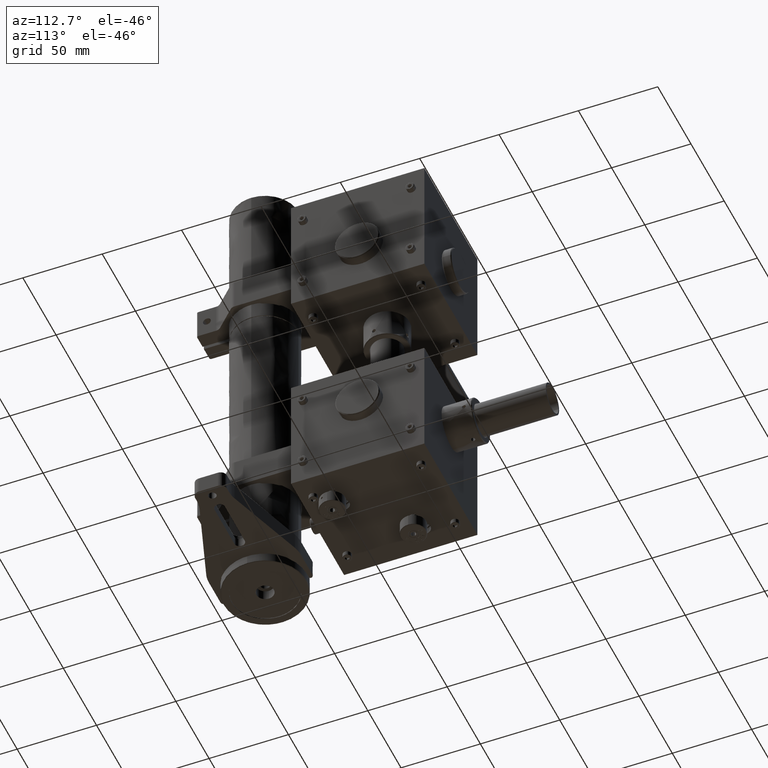
[diagram: clean part render]
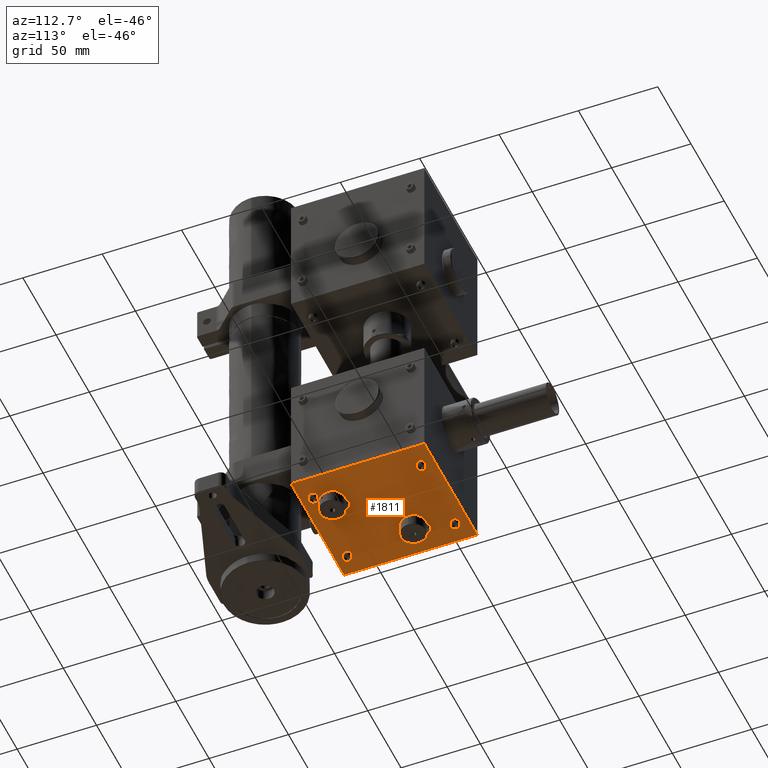
[diagram: same view with one face highlighted and labeled with its STEP entity id]
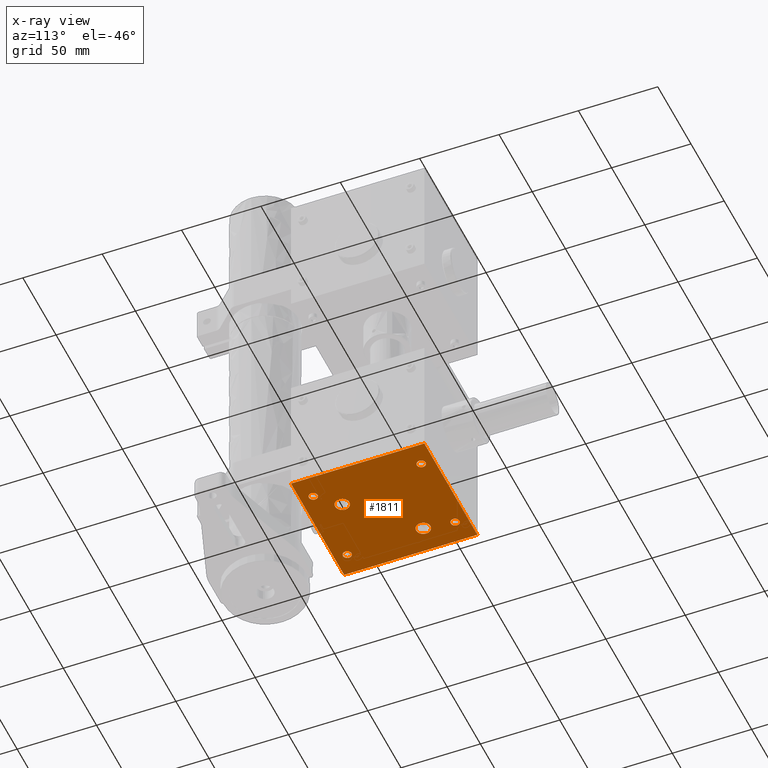
[diagram: x-ray of the same camera — body ghosted, the highlighted face saturated]
A machine part, auxiliary view. The second image highlights one B-rep face of the part: STEP entity #1811.
The next image is the same camera in x-ray: the body ghosted, the highlighted face saturated — about 0% of this face is hidden behind the body in this view.
In plain terms, the highlighted face is a freeform B-spline surface patch.
Its self-contained STEP definition (entity closure, byte-faithful):
#1811=ADVANCED_FACE('',(#4897,#4288,#4289,#4290,#4291,#4292,#4293),#106596,
 .T.);
#4288=FACE_BOUND('',#7758,.T.);
#4289=FACE_BOUND('',#7759,.T.);
#4290=FACE_BOUND('',#7760,.T.);
#4291=FACE_BOUND('',#7761,.T.);
#4292=FACE_BOUND('',#7762,.T.);
#4293=FACE_BOUND('',#7763,.T.);
#4897=FACE_OUTER_BOUND('',#7757,.T.);
#7757=EDGE_LOOP('',(#12363,#12364,#12365,#12366));
#7758=EDGE_LOOP('',(#12367,#12368));
#7759=EDGE_LOOP('',(#12369,#12370));
#7760=EDGE_LOOP('',(#12371,#12372));
#7761=EDGE_LOOP('',(#12373,#12374,#12375));
#7762=EDGE_LOOP('',(#12376,#12377));
#7763=EDGE_LOOP('',(#12378,#12379));
#12363=ORIENTED_EDGE('',*,*,#87504,.T.);
#12364=ORIENTED_EDGE('',*,*,#87505,.T.);
#12365=ORIENTED_EDGE('',*,*,#87492,.F.);
#12366=ORIENTED_EDGE('',*,*,#87506,.T.);
#12367=ORIENTED_EDGE('',*,*,#87507,.T.);
#12368=ORIENTED_EDGE('',*,*,#87508,.T.);
#12369=ORIENTED_EDGE('',*,*,#87069,.F.);
#12370=ORIENTED_EDGE('',*,*,#87067,.F.);
#12371=ORIENTED_EDGE('',*,*,#87509,.T.);
#12372=ORIENTED_EDGE('',*,*,#87510,.T.);
#12373=ORIENTED_EDGE('',*,*,#87076,.F.);
#12374=ORIENTED_EDGE('',*,*,#87074,.F.);
#12375=ORIENTED_EDGE('',*,*,#87077,.F.);
#12376=ORIENTED_EDGE('',*,*,#87511,.T.);
#12377=ORIENTED_EDGE('',*,*,#87512,.T.);
#12378=ORIENTED_EDGE('',*,*,#87513,.T.);
#12379=ORIENTED_EDGE('',*,*,#87514,.T.);
#27027=B_SPLINE_CURVE_WITH_KNOTS('',1,(#134753,#134754),.UNSPECIFIED.,.F.,
 .F.,(2,2),(-8.63937979737193,0.),.UNSPECIFIED.);
#27029=B_SPLINE_CURVE_WITH_KNOTS('',1,(#134764,#134765),.UNSPECIFIED.,.F.,
 .F.,(2,2),(-8.63937979737193,0.),.UNSPECIFIED.);
#27036=B_SPLINE_CURVE_WITH_KNOTS('',1,(#134792,#134793),.UNSPECIFIED.,.F.,
 .F.,(2,2),(-4.31968989868597,0.),.UNSPECIFIED.);
#27038=B_SPLINE_CURVE_WITH_KNOTS('',1,(#134803,#134804),.UNSPECIFIED.,.F.,
 .F.,(2,2),(-8.63937979737193,0.),.UNSPECIFIED.);
#27039=B_SPLINE_CURVE_WITH_KNOTS('',1,(#134808,#134809),.UNSPECIFIED.,.F.,
 .F.,(2,2),(-8.63937979737193,-4.31968989868597),.UNSPECIFIED.);
#27657=B_SPLINE_CURVE_WITH_KNOTS('',1,(#138176,#138177),.UNSPECIFIED.,.F.,
 .F.,(2,2),(-84.000000000002,0.),.UNSPECIFIED.);
#27658=B_SPLINE_CURVE_WITH_KNOTS('',1,(#138178,#138179),.UNSPECIFIED.,.F.,
 .F.,(2,2),(-84.000000000002,0.),.UNSPECIFIED.);
#27664=B_SPLINE_CURVE_WITH_KNOTS('',1,(#138282,#138283),.UNSPECIFIED.,.F.,
 .F.,(2,2),(-84.0000000000029,0.),.UNSPECIFIED.);
#27665=B_SPLINE_CURVE_WITH_KNOTS('',1,(#138284,#138285),.UNSPECIFIED.,.F.,
 .F.,(2,2),(-84.0000000000029,0.),.UNSPECIFIED.);
#27666=B_SPLINE_CURVE_WITH_KNOTS('',1,(#138286,#138287),.UNSPECIFIED.,.F.,
 .F.,(2,2),(-80.,0.),.UNSPECIFIED.);
#27667=B_SPLINE_CURVE_WITH_KNOTS('',1,(#138288,#138289),.UNSPECIFIED.,.F.,
 .F.,(2,2),(-80.,0.),.UNSPECIFIED.);
#27668=B_SPLINE_CURVE_WITH_KNOTS('',1,(#138290,#138291),.UNSPECIFIED.,.F.,
 .F.,(2,2),(-84.000000000002,0.),.UNSPECIFIED.);
#27669=B_SPLINE_CURVE_WITH_KNOTS('',1,(#138292,#138293),.UNSPECIFIED.,.F.,
 .F.,(2,2),(-80.,0.),.UNSPECIFIED.);
#27670=B_SPLINE_CURVE_WITH_KNOTS('',1,(#138294,#138295),.UNSPECIFIED.,.F.,
 .F.,(2,2),(-80.,0.),.UNSPECIFIED.);
#27674=B_SPLINE_CURVE_WITH_KNOTS('',1,(#138403,#138404),.UNSPECIFIED.,.F.,
 .F.,(2,2),(-84.0000000000029,0.),.UNSPECIFIED.);
#27679=B_SPLINE_CURVE_WITH_KNOTS('',1,(#138505,#138506),.UNSPECIFIED.,.F.,
 .F.,(2,2),(-80.,0.),.UNSPECIFIED.);
#27700=B_SPLINE_CURVE_WITH_KNOTS('',1,(#138630,#138631),.UNSPECIFIED.,.F.,
 .F.,(2,2),(0.,14.1371669411541),.UNSPECIFIED.);
#27705=B_SPLINE_CURVE_WITH_KNOTS('',1,(#138644,#138645),.UNSPECIFIED.,.F.,
 .F.,(2,2),(0.,14.1371669411541),.UNSPECIFIED.);
#27708=B_SPLINE_CURVE_WITH_KNOTS('',1,(#138650,#138651),.UNSPECIFIED.,.F.,
 .F.,(2,2),(0.,14.1371669411541),.UNSPECIFIED.);
#27713=B_SPLINE_CURVE_WITH_KNOTS('',1,(#138664,#138665),.UNSPECIFIED.,.F.,
 .F.,(2,2),(0.,14.1371669411541),.UNSPECIFIED.);
#28195=B_SPLINE_CURVE_WITH_KNOTS('',1,(#141897,#141898),.UNSPECIFIED.,.F.,
 .F.,(2,2),(-80.,0.),.UNSPECIFIED.);
#29817=B_SPLINE_CURVE_WITH_KNOTS('',1,(#151377,#151378),.UNSPECIFIED.,.F.,
 .F.,(2,2),(0.,8.63937979737193),.UNSPECIFIED.);
#29819=B_SPLINE_CURVE_WITH_KNOTS('',1,(#151383,#151384),.UNSPECIFIED.,.F.,
 .F.,(2,2),(0.,8.63937979737193),.UNSPECIFIED.);
#29827=B_SPLINE_CURVE_WITH_KNOTS('',1,(#151413,#151414),.UNSPECIFIED.,.F.,
 .F.,(2,2),(0.,8.63937979737193),.UNSPECIFIED.);
#29829=B_SPLINE_CURVE_WITH_KNOTS('',1,(#151419,#151420),.UNSPECIFIED.,.F.,
 .F.,(2,2),(0.,8.63937979737193),.UNSPECIFIED.);
#47385=PCURVE('',#105227,#62881);
#47387=PCURVE('',#105228,#62883);
#47394=PCURVE('',#105229,#62890);
#47396=PCURVE('',#105230,#62892);
#47397=PCURVE('',#105230,#62893);
#48067=PCURVE('',#106595,#63563);
#48086=PCURVE('',#106596,#63582);
#48087=PCURVE('',#106596,#63583);
#48088=PCURVE('',#106596,#63584);
#48089=PCURVE('',#106596,#63585);
#48090=PCURVE('',#106596,#63586);
#48091=PCURVE('',#106596,#63587);
#48092=PCURVE('',#106596,#63588);
#48093=PCURVE('',#106596,#63589);
#48094=PCURVE('',#106596,#63590);
#48095=PCURVE('',#106596,#63591);
#48096=PCURVE('',#106596,#63592);
#48097=PCURVE('',#106596,#63593);
#48098=PCURVE('',#106596,#63594);
#48099=PCURVE('',#106596,#63595);
#48100=PCURVE('',#106596,#63596);
#48101=PCURVE('',#106596,#63597);
#48102=PCURVE('',#106596,#63598);
#48105=PCURVE('',#106597,#63601);
#48124=PCURVE('',#106598,#63620);
#48147=PCURVE('',#105318,#63643);
#48152=PCURVE('',#105319,#63648);
#48155=PCURVE('',#105320,#63651);
#48160=PCURVE('',#105321,#63656);
#48677=PCURVE('',#106626,#64173);
#50466=PCURVE('',#105601,#65962);
#50468=PCURVE('',#105602,#65964);
#50476=PCURVE('',#105603,#65972);
#50478=PCURVE('',#105604,#65974);
#62881=DEFINITIONAL_REPRESENTATION('',(#27027),#277684);
#62883=DEFINITIONAL_REPRESENTATION('',(#27029),#277684);
#62890=DEFINITIONAL_REPRESENTATION('',(#27036),#277684);
#62892=DEFINITIONAL_REPRESENTATION('',(#27038),#277684);
#62893=DEFINITIONAL_REPRESENTATION('',(#27039),#277684);
#63563=DEFINITIONAL_REPRESENTATION('',(#27658),#277684);
#63582=DEFINITIONAL_REPRESENTATION('',(#27665),#277684);
#63583=DEFINITIONAL_REPRESENTATION('',(#27667),#277684);
#63584=DEFINITIONAL_REPRESENTATION('',(#27668),#277684);
#63585=DEFINITIONAL_REPRESENTATION('',(#27670),#277684);
#63586=DEFINITIONAL_REPRESENTATION('',(#97007),#277684);
#63587=DEFINITIONAL_REPRESENTATION('',(#97009),#277684);
#63588=DEFINITIONAL_REPRESENTATION('',(#97010),#277684);
#63589=DEFINITIONAL_REPRESENTATION('',(#97011),#277684);
#63590=DEFINITIONAL_REPRESENTATION('',(#97013),#277684);
#63591=DEFINITIONAL_REPRESENTATION('',(#97015),#277684);
#63592=DEFINITIONAL_REPRESENTATION('',(#97016),#277684);
#63593=DEFINITIONAL_REPRESENTATION('',(#97017),#277684);
#63594=DEFINITIONAL_REPRESENTATION('',(#97018),#277684);
#63595=DEFINITIONAL_REPRESENTATION('',(#97020),#277684);
#63596=DEFINITIONAL_REPRESENTATION('',(#97022),#277684);
#63597=DEFINITIONAL_REPRESENTATION('',(#97024),#277684);
#63598=DEFINITIONAL_REPRESENTATION('',(#97026),#277684);
#63601=DEFINITIONAL_REPRESENTATION('',(#27674),#277684);
#63620=DEFINITIONAL_REPRESENTATION('',(#27679),#277684);
#63643=DEFINITIONAL_REPRESENTATION('',(#27700),#277684);
#63648=DEFINITIONAL_REPRESENTATION('',(#27705),#277684);
#63651=DEFINITIONAL_REPRESENTATION('',(#27708),#277684);
#63656=DEFINITIONAL_REPRESENTATION('',(#27713),#277684);
#64173=DEFINITIONAL_REPRESENTATION('',(#28195),#277684);
#65962=DEFINITIONAL_REPRESENTATION('',(#29817),#277684);
#65964=DEFINITIONAL_REPRESENTATION('',(#29819),#277684);
#65972=DEFINITIONAL_REPRESENTATION('',(#29827),#277684);
#65974=DEFINITIONAL_REPRESENTATION('',(#29829),#277684);
#77760=SURFACE_CURVE('',#96505,(#47385,#48093),.PCURVE_S1.);
#77762=SURFACE_CURVE('',#96507,(#47387,#48092),.PCURVE_S1.);
#77767=SURFACE_CURVE('',#96512,(#47394,#48097),.PCURVE_S1.);
#77769=SURFACE_CURVE('',#96514,(#47396,#48096),.PCURVE_S1.);
#77770=SURFACE_CURVE('',#96515,(#47397,#48098),.PCURVE_S1.);
#78185=SURFACE_CURVE('',#27657,(#48067,#48088),.PCURVE_S1.);
#78197=SURFACE_CURVE('',#27664,(#48086,#48105),.PCURVE_S1.);
#78198=SURFACE_CURVE('',#27666,(#48087,#48124),.PCURVE_S1.);
#78199=SURFACE_CURVE('',#27669,(#48089,#48677),.PCURVE_S1.);
#78200=SURFACE_CURVE('',#97006,(#48090,#50478),.PCURVE_S1.);
#78201=SURFACE_CURVE('',#97008,(#48091,#50476),.PCURVE_S1.);
#78202=SURFACE_CURVE('',#97012,(#48094,#50468),.PCURVE_S1.);
#78203=SURFACE_CURVE('',#97014,(#48095,#50466),.PCURVE_S1.);
#78204=SURFACE_CURVE('',#97019,(#48099,#48152),.PCURVE_S1.);
#78205=SURFACE_CURVE('',#97021,(#48100,#48147),.PCURVE_S1.);
#78206=SURFACE_CURVE('',#97023,(#48101,#48160),.PCURVE_S1.);
#78207=SURFACE_CURVE('',#97025,(#48102,#48155),.PCURVE_S1.);
#87067=EDGE_CURVE('',#100713,#100714,#77760,.T.);
#87069=EDGE_CURVE('',#100714,#100713,#77762,.T.);
#87074=EDGE_CURVE('',#100718,#100719,#77767,.T.);
#87076=EDGE_CURVE('',#100719,#100720,#77769,.T.);
#87077=EDGE_CURVE('',#100720,#100718,#77770,.T.);
#87492=EDGE_CURVE('',#101021,#101022,#78185,.T.);
#87504=EDGE_CURVE('',#101032,#101033,#78197,.T.);
#87505=EDGE_CURVE('',#101033,#101022,#78198,.T.);
#87506=EDGE_CURVE('',#101021,#101032,#78199,.T.);
#87507=EDGE_CURVE('',#101035,#101034,#78200,.T.);
#87508=EDGE_CURVE('',#101034,#101035,#78201,.T.);
#87509=EDGE_CURVE('',#101037,#101036,#78202,.T.);
#87510=EDGE_CURVE('',#101036,#101037,#78203,.T.);
#87511=EDGE_CURVE('',#101039,#101038,#78204,.T.);
#87512=EDGE_CURVE('',#101038,#101039,#78205,.T.);
#87513=EDGE_CURVE('',#101041,#101040,#78206,.T.);
#87514=EDGE_CURVE('',#101040,#101041,#78207,.T.);
#96505=(
BOUNDED_CURVE()
B_SPLINE_CURVE(2,(#134748,#134749,#134750,#134751,#134752),
 .UNSPECIFIED.,.F.,.F.)
B_SPLINE_CURVE_WITH_KNOTS((3,2,3),(-8.63937979737193,-4.31968989868597,
0.),.UNSPECIFIED.)
CURVE()
GEOMETRIC_REPRESENTATION_ITEM()
RATIONAL_B_SPLINE_CURVE((1.,0.707106781186548,1.,0.707106781186548,1.))
REPRESENTATION_ITEM('')
);
#96507=(
BOUNDED_CURVE()
B_SPLINE_CURVE(2,(#134759,#134760,#134761,#134762,#134763),
 .UNSPECIFIED.,.F.,.F.)
B_SPLINE_CURVE_WITH_KNOTS((3,2,3),(-8.63937979737193,-4.31968989868597,
0.),.UNSPECIFIED.)
CURVE()
GEOMETRIC_REPRESENTATION_ITEM()
RATIONAL_B_SPLINE_CURVE((1.,0.707106781186548,1.,0.707106781186548,1.))
REPRESENTATION_ITEM('')
);
#96512=(
BOUNDED_CURVE()
B_SPLINE_CURVE(2,(#134789,#134790,#134791),.UNSPECIFIED.,.F.,.F.)
B_SPLINE_CURVE_WITH_KNOTS((3,3),(-4.31968989868597,0.),.UNSPECIFIED.)
CURVE()
GEOMETRIC_REPRESENTATION_ITEM()
RATIONAL_B_SPLINE_CURVE((1.,0.707106781186553,1.))
REPRESENTATION_ITEM('')
);
#96514=(
BOUNDED_CURVE()
B_SPLINE_CURVE(2,(#134798,#134799,#134800,#134801,#134802),
 .UNSPECIFIED.,.F.,.F.)
B_SPLINE_CURVE_WITH_KNOTS((3,2,3),(-8.63937979737193,-4.31968989868597,
0.),.UNSPECIFIED.)
CURVE()
GEOMETRIC_REPRESENTATION_ITEM()
RATIONAL_B_SPLINE_CURVE((1.,0.707106781186547,1.,0.707106781186547,1.))
REPRESENTATION_ITEM('')
);
#96515=(
BOUNDED_CURVE()
B_SPLINE_CURVE(2,(#134805,#134806,#134807),.UNSPECIFIED.,.F.,.F.)
B_SPLINE_CURVE_WITH_KNOTS((3,3),(-8.63937979737193,-4.31968989868597),
 .UNSPECIFIED.)
CURVE()
GEOMETRIC_REPRESENTATION_ITEM()
RATIONAL_B_SPLINE_CURVE((1.,0.707106781186548,1.))
REPRESENTATION_ITEM('')
);
#97006=(
BOUNDED_CURVE()
B_SPLINE_CURVE(2,(#138296,#138297,#138298,#138299,#138300),
 .UNSPECIFIED.,.F.,.F.)
B_SPLINE_CURVE_WITH_KNOTS((3,2,3),(0.,4.31968989868598,8.63937979737193),
 .UNSPECIFIED.)
CURVE()
GEOMETRIC_REPRESENTATION_ITEM()
RATIONAL_B_SPLINE_CURVE((1.,0.707106781186548,1.,0.707106781186548,1.))
REPRESENTATION_ITEM('')
);
#97007=(
BOUNDED_CURVE()
B_SPLINE_CURVE(2,(#138301,#138302,#138303,#138304,#138305),
 .UNSPECIFIED.,.F.,.F.)
B_SPLINE_CURVE_WITH_KNOTS((3,2,3),(0.,4.31968989868597,8.63937979737193),
 .UNSPECIFIED.)
CURVE()
GEOMETRIC_REPRESENTATION_ITEM()
RATIONAL_B_SPLINE_CURVE((1.,0.707106781186549,1.,0.707106781186549,1.))
REPRESENTATION_ITEM('')
);
#97008=(
BOUNDED_CURVE()
B_SPLINE_CURVE(2,(#138306,#138307,#138308,#138309,#138310),
 .UNSPECIFIED.,.F.,.F.)
B_SPLINE_CURVE_WITH_KNOTS((3,2,3),(0.,4.31968989868597,8.63937979737193),
 .UNSPECIFIED.)
CURVE()
GEOMETRIC_REPRESENTATION_ITEM()
RATIONAL_B_SPLINE_CURVE((1.,0.707106781186547,1.,0.707106781186547,1.))
REPRESENTATION_ITEM('')
);
#97009=(
BOUNDED_CURVE()
B_SPLINE_CURVE(2,(#138311,#138312,#138313,#138314,#138315),
 .UNSPECIFIED.,.F.,.F.)
B_SPLINE_CURVE_WITH_KNOTS((3,2,3),(0.,4.31968989868597,8.63937979737193),
 .UNSPECIFIED.)
CURVE()
GEOMETRIC_REPRESENTATION_ITEM()
RATIONAL_B_SPLINE_CURVE((1.,0.707106781186547,1.,0.707106781186547,1.))
REPRESENTATION_ITEM('')
);
#97010=(
BOUNDED_CURVE()
B_SPLINE_CURVE(2,(#138316,#138317,#138318,#138319,#138320),
 .UNSPECIFIED.,.F.,.F.)
B_SPLINE_CURVE_WITH_KNOTS((3,2,3),(-8.63937979737193,-4.31968989868597,
0.),.UNSPECIFIED.)
CURVE()
GEOMETRIC_REPRESENTATION_ITEM()
RATIONAL_B_SPLINE_CURVE((1.,0.707106781186548,1.,0.707106781186548,1.))
REPRESENTATION_ITEM('')
);
#97011=(
BOUNDED_CURVE()
B_SPLINE_CURVE(2,(#138321,#138322,#138323,#138324,#138325),
 .UNSPECIFIED.,.F.,.F.)
B_SPLINE_CURVE_WITH_KNOTS((3,2,3),(-8.63937979737193,-4.31968989868597,
0.),.UNSPECIFIED.)
CURVE()
GEOMETRIC_REPRESENTATION_ITEM()
RATIONAL_B_SPLINE_CURVE((1.,0.707106781186548,1.,0.707106781186548,1.))
REPRESENTATION_ITEM('')
);
#97012=(
BOUNDED_CURVE()
B_SPLINE_CURVE(2,(#138326,#138327,#138328,#138329,#138330),
 .UNSPECIFIED.,.F.,.F.)
B_SPLINE_CURVE_WITH_KNOTS((3,2,3),(0.,4.31968989868597,8.63937979737193),
 .UNSPECIFIED.)
CURVE()
GEOMETRIC_REPRESENTATION_ITEM()
RATIONAL_B_SPLINE_CURVE((1.,0.707106781186548,1.,0.707106781186548,1.))
REPRESENTATION_ITEM('')
);
#97013=(
BOUNDED_CURVE()
B_SPLINE_CURVE(2,(#138331,#138332,#138333,#138334,#138335),
 .UNSPECIFIED.,.F.,.F.)
B_SPLINE_CURVE_WITH_KNOTS((3,2,3),(0.,4.31968989868597,8.63937979737193),
 .UNSPECIFIED.)
CURVE()
GEOMETRIC_REPRESENTATION_ITEM()
RATIONAL_B_SPLINE_CURVE((1.,0.707106781186548,1.,0.707106781186548,1.))
REPRESENTATION_ITEM('')
);
#97014=(
BOUNDED_CURVE()
B_SPLINE_CURVE(2,(#138336,#138337,#138338,#138339,#138340),
 .UNSPECIFIED.,.F.,.F.)
B_SPLINE_CURVE_WITH_KNOTS((3,2,3),(0.,4.31968989868597,8.63937979737193),
 .UNSPECIFIED.)
CURVE()
GEOMETRIC_REPRESENTATION_ITEM()
RATIONAL_B_SPLINE_CURVE((1.,0.707106781186548,1.,0.707106781186548,1.))
REPRESENTATION_ITEM('')
);
#97015=(
BOUNDED_CURVE()
B_SPLINE_CURVE(2,(#138341,#138342,#138343,#138344,#138345),
 .UNSPECIFIED.,.F.,.F.)
B_SPLINE_CURVE_WITH_KNOTS((3,2,3),(0.,4.31968989868597,8.63937979737193),
 .UNSPECIFIED.)
CURVE()
GEOMETRIC_REPRESENTATION_ITEM()
RATIONAL_B_SPLINE_CURVE((1.,0.707106781186548,1.,0.707106781186548,1.))
REPRESENTATION_ITEM('')
);
#97016=(
BOUNDED_CURVE()
B_SPLINE_CURVE(2,(#138346,#138347,#138348,#138349,#138350),
 .UNSPECIFIED.,.F.,.F.)
B_SPLINE_CURVE_WITH_KNOTS((3,2,3),(-8.63937979737193,-4.31968989868597,
0.),.UNSPECIFIED.)
CURVE()
GEOMETRIC_REPRESENTATION_ITEM()
RATIONAL_B_SPLINE_CURVE((1.,0.707106781186547,1.,0.707106781186547,1.))
REPRESENTATION_ITEM('')
);
#97017=(
BOUNDED_CURVE()
B_SPLINE_CURVE(2,(#138351,#138352,#138353),.UNSPECIFIED.,.F.,.F.)
B_SPLINE_CURVE_WITH_KNOTS((3,3),(-4.31968989868597,0.),.UNSPECIFIED.)
CURVE()
GEOMETRIC_REPRESENTATION_ITEM()
RATIONAL_B_SPLINE_CURVE((1.,0.707106781186553,1.))
REPRESENTATION_ITEM('')
);
#97018=(
BOUNDED_CURVE()
B_SPLINE_CURVE(2,(#138354,#138355,#138356),.UNSPECIFIED.,.F.,.F.)
B_SPLINE_CURVE_WITH_KNOTS((3,3),(-8.63937979737193,-4.31968989868597),
 .UNSPECIFIED.)
CURVE()
GEOMETRIC_REPRESENTATION_ITEM()
RATIONAL_B_SPLINE_CURVE((1.,0.707106781186548,1.))
REPRESENTATION_ITEM('')
);
#97019=(
BOUNDED_CURVE()
B_SPLINE_CURVE(2,(#138357,#138358,#138359,#138360,#138361),
 .UNSPECIFIED.,.F.,.F.)
B_SPLINE_CURVE_WITH_KNOTS((3,2,3),(0.,7.06858347057703,14.1371669411541),
 .UNSPECIFIED.)
CURVE()
GEOMETRIC_REPRESENTATION_ITEM()
RATIONAL_B_SPLINE_CURVE((1.,0.707106781186547,1.,0.707106781186547,1.))
REPRESENTATION_ITEM('')
);
#97020=(
BOUNDED_CURVE()
B_SPLINE_CURVE(2,(#138362,#138363,#138364,#138365,#138366),
 .UNSPECIFIED.,.F.,.F.)
B_SPLINE_CURVE_WITH_KNOTS((3,2,3),(0.,7.06858347057703,14.1371669411541),
 .UNSPECIFIED.)
CURVE()
GEOMETRIC_REPRESENTATION_ITEM()
RATIONAL_B_SPLINE_CURVE((1.,0.707106781186547,1.,0.707106781186547,1.))
REPRESENTATION_ITEM('')
);
#97021=(
BOUNDED_CURVE()
B_SPLINE_CURVE(2,(#138367,#138368,#138369,#138370,#138371),
 .UNSPECIFIED.,.F.,.F.)
B_SPLINE_CURVE_WITH_KNOTS((3,2,3),(0.,7.06858347057703,14.1371669411541),
 .UNSPECIFIED.)
CURVE()
GEOMETRIC_REPRESENTATION_ITEM()
RATIONAL_B_SPLINE_CURVE((1.,0.707106781186547,1.,0.707106781186547,1.))
REPRESENTATION_ITEM('')
);
#97022=(
BOUNDED_CURVE()
B_SPLINE_CURVE(2,(#138372,#138373,#138374,#138375,#138376),
 .UNSPECIFIED.,.F.,.F.)
B_SPLINE_CURVE_WITH_KNOTS((3,2,3),(0.,7.06858347057703,14.1371669411541),
 .UNSPECIFIED.)
CURVE()
GEOMETRIC_REPRESENTATION_ITEM()
RATIONAL_B_SPLINE_CURVE((1.,0.707106781186547,1.,0.707106781186547,1.))
REPRESENTATION_ITEM('')
);
#97023=(
BOUNDED_CURVE()
B_SPLINE_CURVE(2,(#138377,#138378,#138379,#138380,#138381),
 .UNSPECIFIED.,.F.,.F.)
B_SPLINE_CURVE_WITH_KNOTS((3,2,3),(0.,7.06858347057705,14.1371669411541),
 .UNSPECIFIED.)
CURVE()
GEOMETRIC_REPRESENTATION_ITEM()
RATIONAL_B_SPLINE_CURVE((1.,0.707106781186548,1.,0.707106781186548,1.))
REPRESENTATION_ITEM('')
);
#97024=(
BOUNDED_CURVE()
B_SPLINE_CURVE(2,(#138382,#138383,#138384,#138385,#138386),
 .UNSPECIFIED.,.F.,.F.)
B_SPLINE_CURVE_WITH_KNOTS((3,2,3),(0.,7.06858347057703,14.1371669411541),
 .UNSPECIFIED.)
CURVE()
GEOMETRIC_REPRESENTATION_ITEM()
RATIONAL_B_SPLINE_CURVE((1.,0.707106781186547,1.,0.707106781186547,1.))
REPRESENTATION_ITEM('')
);
#97025=(
BOUNDED_CURVE()
B_SPLINE_CURVE(2,(#138387,#138388,#138389,#138390,#138391),
 .UNSPECIFIED.,.F.,.F.)
B_SPLINE_CURVE_WITH_KNOTS((3,2,3),(0.,7.06858347057703,14.1371669411541),
 .UNSPECIFIED.)
CURVE()
GEOMETRIC_REPRESENTATION_ITEM()
RATIONAL_B_SPLINE_CURVE((1.,0.707106781186548,1.,0.707106781186548,1.))
REPRESENTATION_ITEM('')
);
#97026=(
BOUNDED_CURVE()
B_SPLINE_CURVE(2,(#138392,#138393,#138394,#138395,#138396),
 .UNSPECIFIED.,.F.,.F.)
B_SPLINE_CURVE_WITH_KNOTS((3,2,3),(0.,7.06858347057703,14.1371669411541),
 .UNSPECIFIED.)
CURVE()
GEOMETRIC_REPRESENTATION_ITEM()
RATIONAL_B_SPLINE_CURVE((1.,0.707106781186548,1.,0.707106781186548,1.))
REPRESENTATION_ITEM('')
);
#100713=VERTEX_POINT('',#133326);
#100714=VERTEX_POINT('',#133327);
#100718=VERTEX_POINT('',#133331);
#100719=VERTEX_POINT('',#133332);
#100720=VERTEX_POINT('',#133333);
#101021=VERTEX_POINT('',#133634);
#101022=VERTEX_POINT('',#133635);
#101032=VERTEX_POINT('',#133645);
#101033=VERTEX_POINT('',#133646);
#101034=VERTEX_POINT('',#133647);
#101035=VERTEX_POINT('',#133648);
#101036=VERTEX_POINT('',#133649);
#101037=VERTEX_POINT('',#133650);
#101038=VERTEX_POINT('',#133651);
#101039=VERTEX_POINT('',#133652);
#101040=VERTEX_POINT('',#133653);
#101041=VERTEX_POINT('',#133654);
#105227=(
BOUNDED_SURFACE()
B_SPLINE_SURFACE(2,1,((#125539,#125540),(#125541,#125542),(#125543,#125544),
(#125545,#125546),(#125547,#125548),(#125549,#125550),(#125551,#125552),
(#125553,#125554),(#125555,#125556)),.UNSPECIFIED.,.T.,.F.,.F.)
B_SPLINE_SURFACE_WITH_KNOTS((3,2,2,2,3),(2,2),(0.,1.5707963267949,3.14159265358979,
4.71238898038469,6.28318530717959),(0.,3.47999999912745),.UNSPECIFIED.)
GEOMETRIC_REPRESENTATION_ITEM()
RATIONAL_B_SPLINE_SURFACE(((1.,1.),(0.707106781186548,0.707106781186548),
(1.,1.),(0.707106781186548,0.707106781186548),(1.,1.),(0.707106781186548,
0.707106781186548),(1.,1.),(0.707106781186548,0.707106781186548),(1.,1.)))
REPRESENTATION_ITEM('')
SURFACE()
);
#105228=(
BOUNDED_SURFACE()
B_SPLINE_SURFACE(2,1,((#125557,#125558),(#125559,#125560),(#125561,#125562),
(#125563,#125564),(#125565,#125566),(#125567,#125568),(#125569,#125570),
(#125571,#125572),(#125573,#125574)),.UNSPECIFIED.,.T.,.F.,.F.)
B_SPLINE_SURFACE_WITH_KNOTS((3,2,2,2,3),(2,2),(0.,1.5707963267949,3.14159265358979,
4.71238898038469,6.28318530717959),(0.,3.47999999912745),.UNSPECIFIED.)
GEOMETRIC_REPRESENTATION_ITEM()
RATIONAL_B_SPLINE_SURFACE(((1.,1.),(0.707106781186548,0.707106781186548),
(1.,1.),(0.707106781186548,0.707106781186548),(1.,1.),(0.707106781186548,
0.707106781186548),(1.,1.),(0.707106781186548,0.707106781186548),(1.,1.)))
REPRESENTATION_ITEM('')
SURFACE()
);
#105229=(
BOUNDED_SURFACE()
B_SPLINE_SURFACE(2,1,((#125575,#125576),(#125577,#125578),(#125579,#125580),
(#125581,#125582),(#125583,#125584),(#125585,#125586),(#125587,#125588),
(#125589,#125590),(#125591,#125592)),.UNSPECIFIED.,.T.,.F.,.F.)
B_SPLINE_SURFACE_WITH_KNOTS((3,2,2,2,3),(2,2),(0.,1.5707963267949,3.14159265358979,
4.71238898038469,6.28318530717959),(0.,3.47999999912822),.UNSPECIFIED.)
GEOMETRIC_REPRESENTATION_ITEM()
RATIONAL_B_SPLINE_SURFACE(((1.,1.),(0.707106781186548,0.707106781186548),
(1.,1.),(0.707106781186548,0.707106781186548),(1.,1.),(0.707106781186548,
0.707106781186548),(1.,1.),(0.707106781186548,0.707106781186548),(1.,1.)))
REPRESENTATION_ITEM('')
SURFACE()
);
#105230=(
BOUNDED_SURFACE()
B_SPLINE_SURFACE(2,1,((#125593,#125594),(#125595,#125596),(#125597,#125598),
(#125599,#125600),(#125601,#125602),(#125603,#125604),(#125605,#125606),
(#125607,#125608),(#125609,#125610)),.UNSPECIFIED.,.T.,.F.,.F.)
B_SPLINE_SURFACE_WITH_KNOTS((3,2,2,2,3),(2,2),(0.,1.5707963267949,3.14159265358979,
4.71238898038469,6.28318530717959),(0.,3.47999999912822),.UNSPECIFIED.)
GEOMETRIC_REPRESENTATION_ITEM()
RATIONAL_B_SPLINE_SURFACE(((1.,1.),(0.707106781186548,0.707106781186548),
(1.,1.),(0.707106781186548,0.707106781186548),(1.,1.),(0.707106781186548,
0.707106781186548),(1.,1.),(0.707106781186548,0.707106781186548),(1.,1.)))
REPRESENTATION_ITEM('')
SURFACE()
);
#105318=(
BOUNDED_SURFACE()
B_SPLINE_SURFACE(1,2,((#127341,#127342,#127343,#127344,#127345,#127346,
#127347,#127348,#127349),(#127350,#127351,#127352,#127353,#127354,#127355,
#127356,#127357,#127358)),.UNSPECIFIED.,.F.,.F.,.F.)
B_SPLINE_SURFACE_WITH_KNOTS((2,2),(3,2,2,2,3),(0.,5.04000000170713),(0.,
1.5707963267949,3.14159265358979,4.71238898038469,6.28318530717959),
 .UNSPECIFIED.)
GEOMETRIC_REPRESENTATION_ITEM()
RATIONAL_B_SPLINE_SURFACE(((1.,0.707106781186548,1.,0.707106781186548,1.,
0.707106781186548,1.,0.707106781186548,1.),(1.,0.707106781186548,1.,0.707106781186548,
1.,0.707106781186548,1.,0.707106781186548,1.)))
REPRESENTATION_ITEM('')
SURFACE()
);
#105319=(
BOUNDED_SURFACE()
B_SPLINE_SURFACE(1,2,((#127359,#127360,#127361,#127362,#127363,#127364,
#127365,#127366,#127367),(#127368,#127369,#127370,#127371,#127372,#127373,
#127374,#127375,#127376)),.UNSPECIFIED.,.F.,.F.,.F.)
B_SPLINE_SURFACE_WITH_KNOTS((2,2),(3,2,2,2,3),(0.,5.04000000170713),(0.,
1.5707963267949,3.14159265358979,4.71238898038469,6.28318530717959),
 .UNSPECIFIED.)
GEOMETRIC_REPRESENTATION_ITEM()
RATIONAL_B_SPLINE_SURFACE(((1.,0.707106781186548,1.,0.707106781186548,1.,
0.707106781186548,1.,0.707106781186548,1.),(1.,0.707106781186548,1.,0.707106781186548,
1.,0.707106781186548,1.,0.707106781186548,1.)))
REPRESENTATION_ITEM('')
SURFACE()
);
#105320=(
BOUNDED_SURFACE()
B_SPLINE_SURFACE(1,2,((#127377,#127378,#127379,#127380,#127381,#127382,
#127383,#127384,#127385),(#127386,#127387,#127388,#127389,#127390,#127391,
#127392,#127393,#127394)),.UNSPECIFIED.,.F.,.F.,.F.)
B_SPLINE_SURFACE_WITH_KNOTS((2,2),(3,2,2,2,3),(0.,5.04000000170721),(0.,
1.5707963267949,3.14159265358979,4.71238898038469,6.28318530717959),
 .UNSPECIFIED.)
GEOMETRIC_REPRESENTATION_ITEM()
RATIONAL_B_SPLINE_SURFACE(((1.,0.707106781186548,1.,0.707106781186548,1.,
0.707106781186548,1.,0.707106781186548,1.),(1.,0.707106781186548,1.,0.707106781186548,
1.,0.707106781186548,1.,0.707106781186548,1.)))
REPRESENTATION_ITEM('')
SURFACE()
);
#105321=(
BOUNDED_SURFACE()
B_SPLINE_SURFACE(1,2,((#127395,#127396,#127397,#127398,#127399,#127400,
#127401,#127402,#127403),(#127404,#127405,#127406,#127407,#127408,#127409,
#127410,#127411,#127412)),.UNSPECIFIED.,.F.,.F.,.F.)
B_SPLINE_SURFACE_WITH_KNOTS((2,2),(3,2,2,2,3),(0.,5.04000000170721),(0.,
1.5707963267949,3.14159265358979,4.71238898038469,6.28318530717959),
 .UNSPECIFIED.)
GEOMETRIC_REPRESENTATION_ITEM()
RATIONAL_B_SPLINE_SURFACE(((1.,0.707106781186548,1.,0.707106781186548,1.,
0.707106781186548,1.,0.707106781186548,1.),(1.,0.707106781186548,1.,0.707106781186548,
1.,0.707106781186548,1.,0.707106781186548,1.)))
REPRESENTATION_ITEM('')
SURFACE()
);
#105601=(
BOUNDED_SURFACE()
B_SPLINE_SURFACE(2,1,((#132895,#132896),(#132897,#132898),(#132899,#132900),
(#132901,#132902),(#132903,#132904),(#132905,#132906),(#132907,#132908),
(#132909,#132910),(#132911,#132912)),.UNSPECIFIED.,.T.,.F.,.F.)
B_SPLINE_SURFACE_WITH_KNOTS((3,2,2,2,3),(2,2),(0.,1.5707963267949,3.14159265358979,
4.71238898038469,6.28318530717959),(0.,3.48000000390558),.UNSPECIFIED.)
GEOMETRIC_REPRESENTATION_ITEM()
RATIONAL_B_SPLINE_SURFACE(((1.,1.),(0.707106781186548,0.707106781186548),
(1.,1.),(0.707106781186548,0.707106781186548),(1.,1.),(0.707106781186548,
0.707106781186548),(1.,1.),(0.707106781186548,0.707106781186548),(1.,1.)))
REPRESENTATION_ITEM('')
SURFACE()
);
#105602=(
BOUNDED_SURFACE()
B_SPLINE_SURFACE(2,1,((#132913,#132914),(#132915,#132916),(#132917,#132918),
(#132919,#132920),(#132921,#132922),(#132923,#132924),(#132925,#132926),
(#132927,#132928),(#132929,#132930)),.UNSPECIFIED.,.T.,.F.,.F.)
B_SPLINE_SURFACE_WITH_KNOTS((3,2,2,2,3),(2,2),(0.,1.5707963267949,3.14159265358979,
4.71238898038469,6.28318530717959),(0.,3.48000000390558),.UNSPECIFIED.)
GEOMETRIC_REPRESENTATION_ITEM()
RATIONAL_B_SPLINE_SURFACE(((1.,1.),(0.707106781186548,0.707106781186548),
(1.,1.),(0.707106781186548,0.707106781186548),(1.,1.),(0.707106781186548,
0.707106781186548),(1.,1.),(0.707106781186548,0.707106781186548),(1.,1.)))
REPRESENTATION_ITEM('')
SURFACE()
);
#105603=(
BOUNDED_SURFACE()
B_SPLINE_SURFACE(2,1,((#132931,#132932),(#132933,#132934),(#132935,#132936),
(#132937,#132938),(#132939,#132940),(#132941,#132942),(#132943,#132944),
(#132945,#132946),(#132947,#132948)),.UNSPECIFIED.,.T.,.F.,.F.)
B_SPLINE_SURFACE_WITH_KNOTS((3,2,2,2,3),(2,2),(0.,1.5707963267949,3.14159265358979,
4.71238898038469,6.28318530717959),(0.,3.48000000390559),.UNSPECIFIED.)
GEOMETRIC_REPRESENTATION_ITEM()
RATIONAL_B_SPLINE_SURFACE(((1.,1.),(0.707106781186548,0.707106781186548),
(1.,1.),(0.707106781186548,0.707106781186548),(1.,1.),(0.707106781186548,
0.707106781186548),(1.,1.),(0.707106781186548,0.707106781186548),(1.,1.)))
REPRESENTATION_ITEM('')
SURFACE()
);
#105604=(
BOUNDED_SURFACE()
B_SPLINE_SURFACE(2,1,((#132949,#132950),(#132951,#132952),(#132953,#132954),
(#132955,#132956),(#132957,#132958),(#132959,#132960),(#132961,#132962),
(#132963,#132964),(#132965,#132966)),.UNSPECIFIED.,.T.,.F.,.F.)
B_SPLINE_SURFACE_WITH_KNOTS((3,2,2,2,3),(2,2),(0.,1.5707963267949,3.14159265358979,
4.71238898038469,6.28318530717959),(0.,3.48000000390559),.UNSPECIFIED.)
GEOMETRIC_REPRESENTATION_ITEM()
RATIONAL_B_SPLINE_SURFACE(((1.,1.),(0.707106781186548,0.707106781186548),
(1.,1.),(0.707106781186548,0.707106781186548),(1.,1.),(0.707106781186548,
0.707106781186548),(1.,1.),(0.707106781186548,0.707106781186548),(1.,1.)))
REPRESENTATION_ITEM('')
SURFACE()
);
#106595=B_SPLINE_SURFACE_WITH_KNOTS('',1,1,((#127317,#127318),(#127319,
#127320)),.UNSPECIFIED.,.F.,.F.,.F.,(2,2),(2,2),(-101.040000000002,-3.5527136788005E-15),
(1.86894055786979E-10,96.2400000005962),.UNSPECIFIED.);
#106596=B_SPLINE_SURFACE_WITH_KNOTS('',1,1,((#127321,#127322),(#127323,
#127324)),.UNSPECIFIED.,.F.,.F.,.F.,(2,2),(2,2),(1.97582572525334E-09,96.2400000062862),
(1.4210854715202E-14,101.040000000003),.UNSPECIFIED.);
#106597=B_SPLINE_SURFACE_WITH_KNOTS('',1,1,((#127325,#127326),(#127327,
#127328)),.UNSPECIFIED.,.F.,.F.,.F.,(2,2),(2,2),(1.4210854715202E-14,101.040000000003),
(-96.2400000004263,-1.69908531688634E-11),.UNSPECIFIED.);
#106598=B_SPLINE_SURFACE_WITH_KNOTS('',1,1,((#127329,#127330),(#127331,
#127332)),.UNSPECIFIED.,.F.,.F.,.F.,(2,2),(2,2),(0.,96.2400000000001),(-96.24,
-1.06581410364015E-14),.UNSPECIFIED.);
#106626=B_SPLINE_SURFACE_WITH_KNOTS('',1,1,((#128453,#128454),(#128455,
#128456)),.UNSPECIFIED.,.F.,.F.,.F.,(2,2),(2,2),(-1.70251368558638E-10,
96.2399999998303),(1.7960068987577E-09,96.240000001796),.UNSPECIFIED.);
#125539=CARTESIAN_POINT('',(171.547538861897,-76.0000000000017,-36.4100000007969));
#125540=CARTESIAN_POINT('',(171.547538861897,-76.0000000000017,-39.8899999999243));
#125541=CARTESIAN_POINT('',(171.547538861897,-73.2500000000017,-36.4100000007968));
#125542=CARTESIAN_POINT('',(171.547538861897,-73.2500000000017,-39.8899999999243));
#125543=CARTESIAN_POINT('',(174.297538861897,-73.2500000000017,-36.4100000007966));
#125544=CARTESIAN_POINT('',(174.297538861897,-73.2500000000017,-39.889999999924));
#125545=CARTESIAN_POINT('',(177.047538861897,-73.2500000000017,-36.4100000007964));
#125546=CARTESIAN_POINT('',(177.047538861897,-73.2500000000017,-39.8899999999238));
#125547=CARTESIAN_POINT('',(177.047538861897,-76.0000000000017,-36.4100000007964));
#125548=CARTESIAN_POINT('',(177.047538861897,-76.0000000000017,-39.8899999999238));
#125549=CARTESIAN_POINT('',(177.047538861897,-78.7500000000017,-36.4100000007964));
#125550=CARTESIAN_POINT('',(177.047538861897,-78.7500000000016,-39.8899999999239));
#125551=CARTESIAN_POINT('',(174.297538861897,-78.7500000000017,-36.4100000007967));
#125552=CARTESIAN_POINT('',(174.297538861897,-78.7500000000017,-39.8899999999241));
#125553=CARTESIAN_POINT('',(171.547538861897,-78.7500000000017,-36.4100000007969));
#125554=CARTESIAN_POINT('',(171.547538861897,-78.7500000000017,-39.8899999999243));
#125555=CARTESIAN_POINT('',(171.547538861897,-76.0000000000017,-36.4100000007969));
#125556=CARTESIAN_POINT('',(171.547538861897,-76.0000000000017,-39.8899999999243));
#125557=CARTESIAN_POINT('',(171.547538861897,-76.0000000000017,-36.4100000007969));
#125558=CARTESIAN_POINT('',(171.547538861897,-76.0000000000017,-39.8899999999243));
#125559=CARTESIAN_POINT('',(171.547538861897,-73.2500000000017,-36.4100000007968));
#125560=CARTESIAN_POINT('',(171.547538861897,-73.2500000000017,-39.8899999999243));
#125561=CARTESIAN_POINT('',(174.297538861897,-73.2500000000017,-36.4100000007966));
#125562=CARTESIAN_POINT('',(174.297538861897,-73.2500000000017,-39.889999999924));
#125563=CARTESIAN_POINT('',(177.047538861897,-73.2500000000017,-36.4100000007964));
#125564=CARTESIAN_POINT('',(177.047538861897,-73.2500000000017,-39.8899999999238));
#125565=CARTESIAN_POINT('',(177.047538861897,-76.0000000000017,-36.4100000007964));
#125566=CARTESIAN_POINT('',(177.047538861897,-76.0000000000017,-39.8899999999238));
#125567=CARTESIAN_POINT('',(177.047538861897,-78.7500000000017,-36.4100000007964));
#125568=CARTESIAN_POINT('',(177.047538861897,-78.7500000000016,-39.8899999999239));
#125569=CARTESIAN_POINT('',(174.297538861897,-78.7500000000017,-36.4100000007967));
#125570=CARTESIAN_POINT('',(174.297538861897,-78.7500000000017,-39.8899999999241));
#125571=CARTESIAN_POINT('',(171.547538861897,-78.7500000000017,-36.4100000007969));
#125572=CARTESIAN_POINT('',(171.547538861897,-78.7500000000017,-39.8899999999243));
#125573=CARTESIAN_POINT('',(171.547538861897,-76.0000000000017,-36.4100000007969));
#125574=CARTESIAN_POINT('',(171.547538861897,-76.0000000000017,-39.8899999999243));
#125575=CARTESIAN_POINT('',(174.297538861895,-10.750000000002,-36.4100000007962));
#125576=CARTESIAN_POINT('',(174.297538861895,-10.750000000002,-39.8899999999244));
#125577=CARTESIAN_POINT('',(171.547538861895,-10.750000000002,-36.4100000007962));
#125578=CARTESIAN_POINT('',(171.547538861895,-10.750000000002,-39.8899999999244));
#125579=CARTESIAN_POINT('',(171.547538861895,-8.00000000000202,-36.4100000007962));
#125580=CARTESIAN_POINT('',(171.547538861895,-8.00000000000198,-39.8899999999244));
#125581=CARTESIAN_POINT('',(171.547538861895,-5.25000000000202,-36.4100000007961));
#125582=CARTESIAN_POINT('',(171.547538861895,-5.25000000000198,-39.8899999999244));
#125583=CARTESIAN_POINT('',(174.297538861895,-5.25000000000202,-36.4100000007961));
#125584=CARTESIAN_POINT('',(174.297538861895,-5.25000000000198,-39.8899999999244));
#125585=CARTESIAN_POINT('',(177.047538861895,-5.25000000000202,-36.4100000007961));
#125586=CARTESIAN_POINT('',(177.047538861895,-5.25000000000198,-39.8899999999244));
#125587=CARTESIAN_POINT('',(177.047538861895,-8.00000000000202,-36.4100000007962));
#125588=CARTESIAN_POINT('',(177.047538861895,-8.00000000000198,-39.8899999999244));
#125589=CARTESIAN_POINT('',(177.047538861895,-10.750000000002,-36.4100000007962));
#125590=CARTESIAN_POINT('',(177.047538861895,-10.750000000002,-39.8899999999244));
#125591=CARTESIAN_POINT('',(174.297538861895,-10.750000000002,-36.4100000007962));
#125592=CARTESIAN_POINT('',(174.297538861895,-10.750000000002,-39.8899999999244));
#125593=CARTESIAN_POINT('',(174.297538861895,-10.750000000002,-36.4100000007962));
#125594=CARTESIAN_POINT('',(174.297538861895,-10.750000000002,-39.8899999999244));
#125595=CARTESIAN_POINT('',(171.547538861895,-10.750000000002,-36.4100000007962));
#125596=CARTESIAN_POINT('',(171.547538861895,-10.750000000002,-39.8899999999244));
#125597=CARTESIAN_POINT('',(171.547538861895,-8.00000000000202,-36.4100000007962));
#125598=CARTESIAN_POINT('',(171.547538861895,-8.00000000000198,-39.8899999999244));
#125599=CARTESIAN_POINT('',(171.547538861895,-5.25000000000202,-36.4100000007961));
#125600=CARTESIAN_POINT('',(171.547538861895,-5.25000000000198,-39.8899999999244));
#125601=CARTESIAN_POINT('',(174.297538861895,-5.25000000000202,-36.4100000007961));
#125602=CARTESIAN_POINT('',(174.297538861895,-5.25000000000198,-39.8899999999244));
#125603=CARTESIAN_POINT('',(177.047538861895,-5.25000000000202,-36.4100000007961));
#125604=CARTESIAN_POINT('',(177.047538861895,-5.25000000000198,-39.8899999999244));
#125605=CARTESIAN_POINT('',(177.047538861895,-8.00000000000202,-36.4100000007962));
#125606=CARTESIAN_POINT('',(177.047538861895,-8.00000000000198,-39.8899999999244));
#125607=CARTESIAN_POINT('',(177.047538861895,-10.750000000002,-36.4100000007962));
#125608=CARTESIAN_POINT('',(177.047538861895,-10.750000000002,-39.8899999999244));
#125609=CARTESIAN_POINT('',(174.297538861895,-10.750000000002,-36.4100000007962));
#125610=CARTESIAN_POINT('',(174.297538861895,-10.750000000002,-39.8899999999244));
#127317=CARTESIAN_POINT('',(159.797538871786,8.52000000000056,-127.620000000372));
#127318=CARTESIAN_POINT('',(159.797538871786,8.52000000000056,-31.3799999999628));
#127319=CARTESIAN_POINT('',(159.797538871786,-92.5200000000018,-127.620000000372));
#127320=CARTESIAN_POINT('',(159.797538871786,-92.5200000000018,-31.3799999999628));
#127321=CARTESIAN_POINT('',(151.677538867835,-92.5200000000028,-39.4999999999969));
#127322=CARTESIAN_POINT('',(151.677538867835,8.52000000000065,-39.4999999999969));
#127323=CARTESIAN_POINT('',(247.917538872145,-92.5200000000028,-39.4999999999969));
#127324=CARTESIAN_POINT('',(247.917538872145,8.52000000000065,-39.4999999999969));
#127325=CARTESIAN_POINT('',(239.797538871786,-92.5200000000028,-127.620000000372));
#127326=CARTESIAN_POINT('',(239.797538871786,-92.5200000000028,-31.3799999999628));
#127327=CARTESIAN_POINT('',(239.797538871786,8.52000000000065,-127.620000000372));
#127328=CARTESIAN_POINT('',(239.797538871786,8.52000000000065,-31.3799999999628));
#127329=CARTESIAN_POINT('',(151.677538871786,3.56711327128816E-13,-127.619999999997));
#127330=CARTESIAN_POINT('',(247.917538871786,3.56711327128816E-13,-127.619999999997));
#127331=CARTESIAN_POINT('',(151.677538871786,3.56711327128816E-13,-31.3799999999969));
#127332=CARTESIAN_POINT('',(247.917538871786,3.56711327128816E-13,-31.3799999999969));
#127341=CARTESIAN_POINT('',(181.297538865335,-57.0000000000019,-44.0200000010299));
#127342=CARTESIAN_POINT('',(181.297538865335,-52.5000000000019,-44.0200000010299));
#127343=CARTESIAN_POINT('',(176.797538865335,-52.5000000000019,-44.0200000013816));
#127344=CARTESIAN_POINT('',(172.297538865335,-52.5000000000019,-44.0200000017333));
#127345=CARTESIAN_POINT('',(172.297538865335,-57.0000000000019,-44.0200000017334));
#127346=CARTESIAN_POINT('',(172.297538865335,-61.5000000000019,-44.0200000017334));
#127347=CARTESIAN_POINT('',(176.797538865335,-61.5000000000019,-44.0200000013817));
#127348=CARTESIAN_POINT('',(181.297538865335,-61.5000000000019,-44.02000000103));
#127349=CARTESIAN_POINT('',(181.297538865335,-57.0000000000019,-44.0200000010299));
#127350=CARTESIAN_POINT('',(181.297538864941,-57.0000000000019,-38.9799999993228));
#127351=CARTESIAN_POINT('',(181.297538864941,-52.5000000000019,-38.9799999993228));
#127352=CARTESIAN_POINT('',(176.797538864941,-52.5000000000019,-38.9799999996745));
#127353=CARTESIAN_POINT('',(172.297538864941,-52.5000000000019,-38.9800000000262));
#127354=CARTESIAN_POINT('',(172.297538864941,-57.0000000000019,-38.9800000000263));
#127355=CARTESIAN_POINT('',(172.297538864941,-61.5000000000019,-38.9800000000263));
#127356=CARTESIAN_POINT('',(176.797538864941,-61.5000000000019,-38.9799999996746));
#127357=CARTESIAN_POINT('',(181.297538864941,-61.5000000000019,-38.9799999993229));
#127358=CARTESIAN_POINT('',(181.297538864941,-57.0000000000019,-38.9799999993228));
#127359=CARTESIAN_POINT('',(181.297538865335,-57.0000000000019,-44.0200000010299));
#127360=CARTESIAN_POINT('',(181.297538865335,-52.5000000000019,-44.0200000010299));
#127361=CARTESIAN_POINT('',(176.797538865335,-52.5000000000019,-44.0200000013816));
#127362=CARTESIAN_POINT('',(172.297538865335,-52.5000000000019,-44.0200000017333));
#127363=CARTESIAN_POINT('',(172.297538865335,-57.0000000000019,-44.0200000017334));
#127364=CARTESIAN_POINT('',(172.297538865335,-61.5000000000019,-44.0200000017334));
#127365=CARTESIAN_POINT('',(176.797538865335,-61.5000000000019,-44.0200000013817));
#127366=CARTESIAN_POINT('',(181.297538865335,-61.5000000000019,-44.02000000103));
#127367=CARTESIAN_POINT('',(181.297538865335,-57.0000000000019,-44.0200000010299));
#127368=CARTESIAN_POINT('',(181.297538864941,-57.0000000000019,-38.9799999993228));
#127369=CARTESIAN_POINT('',(181.297538864941,-52.5000000000019,-38.9799999993228));
#127370=CARTESIAN_POINT('',(176.797538864941,-52.5000000000019,-38.9799999996745));
#127371=CARTESIAN_POINT('',(172.297538864941,-52.5000000000019,-38.9800000000262));
#127372=CARTESIAN_POINT('',(172.297538864941,-57.0000000000019,-38.9800000000263));
#127373=CARTESIAN_POINT('',(172.297538864941,-61.5000000000019,-38.9800000000263));
#127374=CARTESIAN_POINT('',(176.797538864941,-61.5000000000019,-38.9799999996746));
#127375=CARTESIAN_POINT('',(181.297538864941,-61.5000000000019,-38.9799999993229));
#127376=CARTESIAN_POINT('',(181.297538864941,-57.0000000000019,-38.9799999993228));
#127377=CARTESIAN_POINT('',(217.297538865336,-21.0000000000022,-44.019999998216));
#127378=CARTESIAN_POINT('',(217.297538865336,-16.5000000000022,-44.019999998216));
#127379=CARTESIAN_POINT('',(212.797538865336,-16.5000000000022,-44.0199999985677));
#127380=CARTESIAN_POINT('',(208.297538865336,-16.5000000000022,-44.0199999989194));
#127381=CARTESIAN_POINT('',(208.297538865336,-21.0000000000022,-44.0199999989195));
#127382=CARTESIAN_POINT('',(208.297538865336,-25.5000000000022,-44.0199999989195));
#127383=CARTESIAN_POINT('',(212.797538865336,-25.5000000000022,-44.0199999985677));
#127384=CARTESIAN_POINT('',(217.297538865336,-25.5000000000022,-44.019999998216));
#127385=CARTESIAN_POINT('',(217.297538865336,-21.0000000000022,-44.019999998216));
#127386=CARTESIAN_POINT('',(217.297538864942,-21.0000000000022,-38.9799999965088));
#127387=CARTESIAN_POINT('',(217.297538864942,-16.5000000000022,-38.9799999965088));
#127388=CARTESIAN_POINT('',(212.797538864942,-16.5000000000022,-38.9799999968605));
#127389=CARTESIAN_POINT('',(208.297538864942,-16.5000000000022,-38.9799999972122));
#127390=CARTESIAN_POINT('',(208.297538864942,-21.0000000000022,-38.9799999972123));
#127391=CARTESIAN_POINT('',(208.297538864942,-25.5000000000022,-38.9799999972123));
#127392=CARTESIAN_POINT('',(212.797538864942,-25.5000000000022,-38.9799999968605));
#127393=CARTESIAN_POINT('',(217.297538864942,-25.5000000000022,-38.9799999965088));
#127394=CARTESIAN_POINT('',(217.297538864942,-21.0000000000022,-38.9799999965088));
#127395=CARTESIAN_POINT('',(217.297538865336,-21.0000000000022,-44.019999998216));
#127396=CARTESIAN_POINT('',(217.297538865336,-16.5000000000022,-44.019999998216));
#127397=CARTESIAN_POINT('',(212.797538865336,-16.5000000000022,-44.0199999985677));
#127398=CARTESIAN_POINT('',(208.297538865336,-16.5000000000022,-44.0199999989194));
#127399=CARTESIAN_POINT('',(208.297538865336,-21.0000000000022,-44.0199999989195));
#127400=CARTESIAN_POINT('',(208.297538865336,-25.5000000000022,-44.0199999989195));
#127401=CARTESIAN_POINT('',(212.797538865336,-25.5000000000022,-44.0199999985677));
#127402=CARTESIAN_POINT('',(217.297538865336,-25.5000000000022,-44.019999998216));
#127403=CARTESIAN_POINT('',(217.297538865336,-21.0000000000022,-44.019999998216));
#127404=CARTESIAN_POINT('',(217.297538864942,-21.0000000000022,-38.9799999965088));
#127405=CARTESIAN_POINT('',(217.297538864942,-16.5000000000022,-38.9799999965088));
#127406=CARTESIAN_POINT('',(212.797538864942,-16.5000000000022,-38.9799999968605));
#127407=CARTESIAN_POINT('',(208.297538864942,-16.5000000000022,-38.9799999972122));
#127408=CARTESIAN_POINT('',(208.297538864942,-21.0000000000022,-38.9799999972123));
#127409=CARTESIAN_POINT('',(208.297538864942,-25.5000000000022,-38.9799999972123));
#127410=CARTESIAN_POINT('',(212.797538864942,-25.5000000000022,-38.9799999968605));
#127411=CARTESIAN_POINT('',(217.297538864942,-25.5000000000022,-38.9799999965088));
#127412=CARTESIAN_POINT('',(217.297538864942,-21.0000000000022,-38.9799999965088));
#128453=CARTESIAN_POINT('',(151.677538868194,-84.0000000000015,-31.3800000003374));
#128454=CARTESIAN_POINT('',(247.917538868194,-84.0000000000015,-31.3800000003374));
#128455=CARTESIAN_POINT('',(151.677538868194,-84.0000000000015,-127.620000000338));
#128456=CARTESIAN_POINT('',(247.917538868194,-84.0000000000015,-127.620000000338));
#132895=CARTESIAN_POINT('',(222.547538861895,-76.0000000000023,-36.4099999964125));
#132896=CARTESIAN_POINT('',(222.547538861895,-76.0000000000023,-39.8900000003181));
#132897=CARTESIAN_POINT('',(222.547538861895,-73.2500000000023,-36.4099999964125));
#132898=CARTESIAN_POINT('',(222.547538861895,-73.2500000000023,-39.8900000003181));
#132899=CARTESIAN_POINT('',(225.297538861895,-73.2500000000023,-36.4099999964122));
#132900=CARTESIAN_POINT('',(225.297538861895,-73.2500000000023,-39.8900000003178));
#132901=CARTESIAN_POINT('',(228.047538861895,-73.2500000000023,-36.409999996412));
#132902=CARTESIAN_POINT('',(228.047538861895,-73.2500000000023,-39.8900000003176));
#132903=CARTESIAN_POINT('',(228.047538861895,-76.0000000000023,-36.409999996412));
#132904=CARTESIAN_POINT('',(228.047538861895,-76.0000000000023,-39.8900000003176));
#132905=CARTESIAN_POINT('',(228.047538861895,-78.7500000000023,-36.4099999964121));
#132906=CARTESIAN_POINT('',(228.047538861895,-78.7500000000022,-39.8900000003177));
#132907=CARTESIAN_POINT('',(225.297538861895,-78.7500000000023,-36.4099999964123));
#132908=CARTESIAN_POINT('',(225.297538861895,-78.7500000000023,-39.8900000003179));
#132909=CARTESIAN_POINT('',(222.547538861895,-78.7500000000023,-36.4099999964126));
#132910=CARTESIAN_POINT('',(222.547538861895,-78.7500000000023,-39.8900000003181));
#132911=CARTESIAN_POINT('',(222.547538861895,-76.0000000000023,-36.4099999964125));
#132912=CARTESIAN_POINT('',(222.547538861895,-76.0000000000023,-39.8900000003181));
#132913=CARTESIAN_POINT('',(222.547538861895,-76.0000000000023,-36.4099999964125));
#132914=CARTESIAN_POINT('',(222.547538861895,-76.0000000000023,-39.8900000003181));
#132915=CARTESIAN_POINT('',(222.547538861895,-73.2500000000023,-36.4099999964125));
#132916=CARTESIAN_POINT('',(222.547538861895,-73.2500000000023,-39.8900000003181));
#132917=CARTESIAN_POINT('',(225.297538861895,-73.2500000000023,-36.4099999964122));
#132918=CARTESIAN_POINT('',(225.297538861895,-73.2500000000023,-39.8900000003178));
#132919=CARTESIAN_POINT('',(228.047538861895,-73.2500000000023,-36.409999996412));
#132920=CARTESIAN_POINT('',(228.047538861895,-73.2500000000023,-39.8900000003176));
#132921=CARTESIAN_POINT('',(228.047538861895,-76.0000000000023,-36.409999996412));
#132922=CARTESIAN_POINT('',(228.047538861895,-76.0000000000023,-39.8900000003176));
#132923=CARTESIAN_POINT('',(228.047538861895,-78.7500000000023,-36.4099999964121));
#132924=CARTESIAN_POINT('',(228.047538861895,-78.7500000000022,-39.8900000003177));
#132925=CARTESIAN_POINT('',(225.297538861895,-78.7500000000023,-36.4099999964123));
#132926=CARTESIAN_POINT('',(225.297538861895,-78.7500000000023,-39.8900000003179));
#132927=CARTESIAN_POINT('',(222.547538861895,-78.7500000000023,-36.4099999964126));
#132928=CARTESIAN_POINT('',(222.547538861895,-78.7500000000023,-39.8900000003181));
#132929=CARTESIAN_POINT('',(222.547538861895,-76.0000000000023,-36.4099999964125));
#132930=CARTESIAN_POINT('',(222.547538861895,-76.0000000000023,-39.8900000003181));
#132931=CARTESIAN_POINT('',(222.547538861896,-8.00000000000257,-36.4099999964116));
#132932=CARTESIAN_POINT('',(222.547538861896,-8.00000000000253,-39.8900000003172));
#132933=CARTESIAN_POINT('',(222.547538861896,-5.25000000000257,-36.4099999964116));
#132934=CARTESIAN_POINT('',(222.547538861896,-5.25000000000254,-39.8900000003172));
#132935=CARTESIAN_POINT('',(225.297538861896,-5.25000000000257,-36.4099999964113));
#132936=CARTESIAN_POINT('',(225.297538861896,-5.25000000000254,-39.8900000003169));
#132937=CARTESIAN_POINT('',(228.047538861896,-5.25000000000257,-36.4099999964111));
#132938=CARTESIAN_POINT('',(228.047538861896,-5.25000000000254,-39.8900000003167));
#132939=CARTESIAN_POINT('',(228.047538861896,-8.00000000000257,-36.4099999964111));
#132940=CARTESIAN_POINT('',(228.047538861896,-8.00000000000253,-39.8900000003167));
#132941=CARTESIAN_POINT('',(228.047538861896,-10.7500000000026,-36.4099999964112));
#132942=CARTESIAN_POINT('',(228.047538861896,-10.7500000000025,-39.8900000003168));
#132943=CARTESIAN_POINT('',(225.297538861896,-10.7500000000026,-36.4099999964114));
#132944=CARTESIAN_POINT('',(225.297538861896,-10.7500000000025,-39.890000000317));
#132945=CARTESIAN_POINT('',(222.547538861896,-10.7500000000026,-36.4099999964116));
#132946=CARTESIAN_POINT('',(222.547538861896,-10.7500000000025,-39.8900000003172));
#132947=CARTESIAN_POINT('',(222.547538861896,-8.00000000000257,-36.4099999964116));
#132948=CARTESIAN_POINT('',(222.547538861896,-8.00000000000253,-39.8900000003172));
#132949=CARTESIAN_POINT('',(222.547538861896,-8.00000000000257,-36.4099999964116));
#132950=CARTESIAN_POINT('',(222.547538861896,-8.00000000000253,-39.8900000003172));
#132951=CARTESIAN_POINT('',(222.547538861896,-5.25000000000257,-36.4099999964116));
#132952=CARTESIAN_POINT('',(222.547538861896,-5.25000000000254,-39.8900000003172));
#132953=CARTESIAN_POINT('',(225.297538861896,-5.25000000000257,-36.4099999964113));
#132954=CARTESIAN_POINT('',(225.297538861896,-5.25000000000254,-39.8900000003169));
#132955=CARTESIAN_POINT('',(228.047538861896,-5.25000000000257,-36.4099999964111));
#132956=CARTESIAN_POINT('',(228.047538861896,-5.25000000000254,-39.8900000003167));
#132957=CARTESIAN_POINT('',(228.047538861896,-8.00000000000257,-36.4099999964111));
#132958=CARTESIAN_POINT('',(228.047538861896,-8.00000000000253,-39.8900000003167));
#132959=CARTESIAN_POINT('',(228.047538861896,-10.7500000000026,-36.4099999964112));
#132960=CARTESIAN_POINT('',(228.047538861896,-10.7500000000025,-39.8900000003168));
#132961=CARTESIAN_POINT('',(225.297538861896,-10.7500000000026,-36.4099999964114));
#132962=CARTESIAN_POINT('',(225.297538861896,-10.7500000000025,-39.890000000317));
#132963=CARTESIAN_POINT('',(222.547538861896,-10.7500000000026,-36.4099999964116));
#132964=CARTESIAN_POINT('',(222.547538861896,-10.7500000000025,-39.8900000003172));
#132965=CARTESIAN_POINT('',(222.547538861896,-8.00000000000257,-36.4099999964116));
#132966=CARTESIAN_POINT('',(222.547538861896,-8.00000000000253,-39.8900000003172));
#133326=CARTESIAN_POINT('',(171.547538861897,-76.0000000000017,-39.4999999999968));
#133327=CARTESIAN_POINT('',(177.047538861897,-76.0000000000017,-39.4999999999966));
#133331=CARTESIAN_POINT('',(174.297538861895,-10.750000000002,-39.499999999997));
#133332=CARTESIAN_POINT('',(177.047538861895,-8.00000000000198,-39.499999999997));
#133333=CARTESIAN_POINT('',(171.547538861895,-8.00000000000198,-39.499999999997));
#133634=CARTESIAN_POINT('',(159.797538869391,-84.0000000000016,-39.500000000224));
#133635=CARTESIAN_POINT('',(159.797538871786,3.58339377188349E-13,-39.4999999999969));
#133645=CARTESIAN_POINT('',(239.797538869391,-84.0000000000022,-39.500000000224));
#133646=CARTESIAN_POINT('',(239.797538871786,3.56859079827421E-13,-39.4999999999969));
#133647=CARTESIAN_POINT('',(228.047538861896,-8.00000000000253,-39.4999999999945));
#133648=CARTESIAN_POINT('',(222.547538861896,-8.00000000000253,-39.4999999999946));
#133649=CARTESIAN_POINT('',(228.047538861895,-76.0000000000023,-39.4999999999948));
#133650=CARTESIAN_POINT('',(222.547538861895,-76.0000000000023,-39.499999999995));
#133651=CARTESIAN_POINT('',(172.297538864982,-57.0000000000019,-39.5000000003969));
#133652=CARTESIAN_POINT('',(181.297538864982,-57.0000000000019,-39.5000000000687));
#133653=CARTESIAN_POINT('',(208.297538864982,-21.0000000000022,-39.4999999992714));
#133654=CARTESIAN_POINT('',(217.297538864982,-21.0000000000022,-39.4999999989431));
#134748=CARTESIAN_POINT('',(171.547538861897,-76.0000000000017,-39.4999999999968));
#134749=CARTESIAN_POINT('',(171.547538861897,-78.7500000000017,-39.4999999999968));
#134750=CARTESIAN_POINT('',(174.297538861897,-78.7500000000017,-39.4999999999967));
#134751=CARTESIAN_POINT('',(177.047538861897,-78.7500000000017,-39.4999999999966));
#134752=CARTESIAN_POINT('',(177.047538861897,-76.0000000000017,-39.4999999999966));
#134753=CARTESIAN_POINT('',(6.28318530717959,3.08999999919985));
#134754=CARTESIAN_POINT('',(3.14159265358979,3.08999999920014));
#134759=CARTESIAN_POINT('',(177.047538861897,-76.0000000000017,-39.4999999999966));
#134760=CARTESIAN_POINT('',(177.047538861897,-73.2500000000017,-39.4999999999966));
#134761=CARTESIAN_POINT('',(174.297538861897,-73.2500000000017,-39.4999999999967));
#134762=CARTESIAN_POINT('',(171.547538861897,-73.2500000000017,-39.4999999999968));
#134763=CARTESIAN_POINT('',(171.547538861897,-76.0000000000017,-39.4999999999968));
#134764=CARTESIAN_POINT('',(3.14159265358979,3.08999999920014));
#134765=CARTESIAN_POINT('',(0.,3.08999999919985));
#134789=CARTESIAN_POINT('',(174.297538861895,-10.750000000002,-39.499999999997));
#134790=CARTESIAN_POINT('',(177.047538861895,-10.750000000002,-39.499999999997));
#134791=CARTESIAN_POINT('',(177.047538861895,-8.00000000000198,-39.499999999997));
#134792=CARTESIAN_POINT('',(6.28318530717959,3.08999999920082));
#134793=CARTESIAN_POINT('',(4.71238898038469,3.08999999920082));
#134798=CARTESIAN_POINT('',(177.047538861895,-8.00000000000198,-39.499999999997));
#134799=CARTESIAN_POINT('',(177.047538861895,-5.25000000000195,-39.499999999997));
#134800=CARTESIAN_POINT('',(174.297538861895,-5.25000000000195,-39.499999999997));
#134801=CARTESIAN_POINT('',(171.547538861895,-5.25000000000195,-39.499999999997));
#134802=CARTESIAN_POINT('',(171.547538861895,-8.00000000000198,-39.499999999997));
#134803=CARTESIAN_POINT('',(4.71238898038469,3.08999999920082));
#134804=CARTESIAN_POINT('',(1.5707963267949,3.08999999920082));
#134805=CARTESIAN_POINT('',(171.547538861895,-8.00000000000198,-39.499999999997));
#134806=CARTESIAN_POINT('',(171.547538861895,-10.750000000002,-39.499999999997));
#134807=CARTESIAN_POINT('',(174.297538861895,-10.750000000002,-39.499999999997));
#134808=CARTESIAN_POINT('',(1.5707963267949,3.08999999920082));
#134809=CARTESIAN_POINT('',(0.,3.08999999920082));
#138176=CARTESIAN_POINT('',(159.797538869391,-84.0000000000016,-39.500000000224));
#138177=CARTESIAN_POINT('',(159.797538871786,3.58339377188349E-13,-39.4999999999969));
#138178=CARTESIAN_POINT('',(-8.5200000000002,88.1200000002215));
#138179=CARTESIAN_POINT('',(-92.5200000000022,88.1200000005621));
#138282=CARTESIAN_POINT('',(239.797538869391,-84.0000000000022,-39.500000000224));
#138283=CARTESIAN_POINT('',(239.797538871786,3.56859079827421E-13,-39.4999999999969));
#138284=CARTESIAN_POINT('',(88.120000002335,8.52000000000029));
#138285=CARTESIAN_POINT('',(88.120000005927,92.5200000000032));
#138286=CARTESIAN_POINT('',(239.797538871786,3.56859079827421E-13,-39.4999999999969));
#138287=CARTESIAN_POINT('',(159.797538871786,3.58339377188349E-13,-39.4999999999969));
#138288=CARTESIAN_POINT('',(88.120000005927,92.5200000000032));
#138289=CARTESIAN_POINT('',(8.12000000592701,92.5200000000032));
#138290=CARTESIAN_POINT('',(8.12000000233502,8.52000000000119));
#138291=CARTESIAN_POINT('',(8.12000000592701,92.5200000000032));
#138292=CARTESIAN_POINT('',(159.797538869391,-84.0000000000016,-39.500000000224));
#138293=CARTESIAN_POINT('',(239.797538869391,-84.0000000000022,-39.500000000224));
#138294=CARTESIAN_POINT('',(8.12000000233502,8.52000000000119));
#138295=CARTESIAN_POINT('',(88.120000002335,8.52000000000029));
#138296=CARTESIAN_POINT('',(222.547538861896,-8.00000000000253,-39.4999999999946));
#138297=CARTESIAN_POINT('',(222.547538861896,-5.25000000000254,-39.4999999999946));
#138298=CARTESIAN_POINT('',(225.297538861896,-5.25000000000254,-39.4999999999945));
#138299=CARTESIAN_POINT('',(228.047538861896,-5.25000000000254,-39.4999999999944));
#138300=CARTESIAN_POINT('',(228.047538861896,-8.00000000000253,-39.4999999999945));
#138301=CARTESIAN_POINT('',(70.869999996037,84.5200000000003));
#138302=CARTESIAN_POINT('',(70.869999996037,87.2700000000003));
#138303=CARTESIAN_POINT('',(73.619999996037,87.2700000000003));
#138304=CARTESIAN_POINT('',(76.369999996037,87.2700000000003));
#138305=CARTESIAN_POINT('',(76.369999996037,84.5200000000003));
#138306=CARTESIAN_POINT('',(228.047538861896,-8.00000000000253,-39.4999999999945));
#138307=CARTESIAN_POINT('',(228.047538861896,-10.7500000000025,-39.4999999999945));
#138308=CARTESIAN_POINT('',(225.297538861896,-10.7500000000025,-39.4999999999946));
#138309=CARTESIAN_POINT('',(222.547538861896,-10.7500000000025,-39.4999999999946));
#138310=CARTESIAN_POINT('',(222.547538861896,-8.00000000000253,-39.4999999999946));
#138311=CARTESIAN_POINT('',(76.369999996037,84.5200000000003));
#138312=CARTESIAN_POINT('',(76.369999996037,81.7700000000003));
#138313=CARTESIAN_POINT('',(73.619999996037,81.7700000000003));
#138314=CARTESIAN_POINT('',(70.869999996037,81.7700000000003));
#138315=CARTESIAN_POINT('',(70.869999996037,84.5200000000003));
#138316=CARTESIAN_POINT('',(25.369999996038,16.5200000000011));
#138317=CARTESIAN_POINT('',(25.369999996038,19.2700000000011));
#138318=CARTESIAN_POINT('',(22.619999996038,19.2700000000011));
#138319=CARTESIAN_POINT('',(19.869999996038,19.2700000000011));
#138320=CARTESIAN_POINT('',(19.869999996038,16.5200000000011));
#138321=CARTESIAN_POINT('',(19.869999996038,16.5200000000011));
#138322=CARTESIAN_POINT('',(19.869999996038,13.7700000000011));
#138323=CARTESIAN_POINT('',(22.619999996038,13.7700000000011));
#138324=CARTESIAN_POINT('',(25.369999996038,13.7700000000011));
#138325=CARTESIAN_POINT('',(25.369999996038,16.5200000000011));
#138326=CARTESIAN_POINT('',(222.547538861895,-76.0000000000023,-39.499999999995));
#138327=CARTESIAN_POINT('',(222.547538861895,-73.2500000000023,-39.499999999995));
#138328=CARTESIAN_POINT('',(225.297538861895,-73.2500000000023,-39.4999999999949));
#138329=CARTESIAN_POINT('',(228.047538861895,-73.2500000000023,-39.4999999999948));
#138330=CARTESIAN_POINT('',(228.047538861895,-76.0000000000023,-39.4999999999948));
#138331=CARTESIAN_POINT('',(70.869999996036,16.5200000000005));
#138332=CARTESIAN_POINT('',(70.869999996036,19.2700000000005));
#138333=CARTESIAN_POINT('',(73.619999996036,19.2700000000005));
#138334=CARTESIAN_POINT('',(76.369999996036,19.2700000000005));
#138335=CARTESIAN_POINT('',(76.369999996036,16.5200000000005));
#138336=CARTESIAN_POINT('',(228.047538861895,-76.0000000000023,-39.4999999999948));
#138337=CARTESIAN_POINT('',(228.047538861895,-78.7500000000023,-39.4999999999948));
#138338=CARTESIAN_POINT('',(225.297538861895,-78.7500000000023,-39.4999999999949));
#138339=CARTESIAN_POINT('',(222.547538861895,-78.7500000000023,-39.499999999995));
#138340=CARTESIAN_POINT('',(222.547538861895,-76.0000000000023,-39.499999999995));
#138341=CARTESIAN_POINT('',(76.369999996036,16.5200000000005));
#138342=CARTESIAN_POINT('',(76.369999996036,13.7700000000005));
#138343=CARTESIAN_POINT('',(73.619999996036,13.7700000000005));
#138344=CARTESIAN_POINT('',(70.869999996036,13.7700000000005));
#138345=CARTESIAN_POINT('',(70.869999996036,16.5200000000005));
#138346=CARTESIAN_POINT('',(25.369999996036,84.5200000000008));
#138347=CARTESIAN_POINT('',(25.369999996036,87.2700000000008));
#138348=CARTESIAN_POINT('',(22.619999996036,87.2700000000008));
#138349=CARTESIAN_POINT('',(19.869999996036,87.2700000000008));
#138350=CARTESIAN_POINT('',(19.869999996036,84.5200000000008));
#138351=CARTESIAN_POINT('',(22.619999996036,81.7700000000008));
#138352=CARTESIAN_POINT('',(25.369999996036,81.7700000000008));
#138353=CARTESIAN_POINT('',(25.369999996036,84.5200000000008));
#138354=CARTESIAN_POINT('',(19.869999996036,84.5200000000008));
#138355=CARTESIAN_POINT('',(19.869999996036,81.7700000000008));
#138356=CARTESIAN_POINT('',(22.619999996036,81.7700000000008));
#138357=CARTESIAN_POINT('',(181.297538864982,-57.0000000000019,-39.5000000000687));
#138358=CARTESIAN_POINT('',(181.297538864982,-61.5000000000019,-39.5000000000687));
#138359=CARTESIAN_POINT('',(176.797538864982,-61.5000000000019,-39.5000000002328));
#138360=CARTESIAN_POINT('',(172.297538864982,-61.5000000000019,-39.5000000003969));
#138361=CARTESIAN_POINT('',(172.297538864982,-57.0000000000019,-39.5000000003969));
#138362=CARTESIAN_POINT('',(29.619999999123,35.5200000000009));
#138363=CARTESIAN_POINT('',(29.619999999123,31.0200000000009));
#138364=CARTESIAN_POINT('',(25.119999999123,31.0200000000009));
#138365=CARTESIAN_POINT('',(20.619999999123,31.0200000000009));
#138366=CARTESIAN_POINT('',(20.619999999123,35.5200000000009));
#138367=CARTESIAN_POINT('',(172.297538864982,-57.0000000000019,-39.5000000003969));
#138368=CARTESIAN_POINT('',(172.297538864982,-52.500000000002,-39.5000000003969));
#138369=CARTESIAN_POINT('',(176.797538864982,-52.500000000002,-39.5000000002328));
#138370=CARTESIAN_POINT('',(181.297538864982,-52.500000000002,-39.5000000000687));
#138371=CARTESIAN_POINT('',(181.297538864982,-57.0000000000019,-39.5000000000687));
#138372=CARTESIAN_POINT('',(20.619999999123,35.5200000000009));
#138373=CARTESIAN_POINT('',(20.619999999123,40.0200000000008));
#138374=CARTESIAN_POINT('',(25.119999999123,40.0200000000008));
#138375=CARTESIAN_POINT('',(29.619999999123,40.0200000000008));
#138376=CARTESIAN_POINT('',(29.619999999123,35.5200000000009));
#138377=CARTESIAN_POINT('',(217.297538864982,-21.0000000000022,-39.4999999989431));
#138378=CARTESIAN_POINT('',(217.297538864982,-25.5000000000022,-39.4999999989431));
#138379=CARTESIAN_POINT('',(212.797538864982,-25.5000000000022,-39.4999999991424));
#138380=CARTESIAN_POINT('',(208.297538864982,-25.5000000000022,-39.4999999993418));
#138381=CARTESIAN_POINT('',(208.297538864982,-21.0000000000022,-39.4999999992714));
#138382=CARTESIAN_POINT('',(65.619999999123,71.5200000000006));
#138383=CARTESIAN_POINT('',(65.619999999123,67.0200000000006));
#138384=CARTESIAN_POINT('',(61.119999999123,67.0200000000006));
#138385=CARTESIAN_POINT('',(56.619999999123,67.0200000000006));
#138386=CARTESIAN_POINT('',(56.619999999123,71.5200000000006));
#138387=CARTESIAN_POINT('',(208.297538864982,-21.0000000000022,-39.4999999992714));
#138388=CARTESIAN_POINT('',(208.297538864982,-16.5000000000022,-39.4999999992714));
#138389=CARTESIAN_POINT('',(212.797538864982,-16.5000000000022,-39.4999999991072));
#138390=CARTESIAN_POINT('',(217.297538864982,-16.5000000000022,-39.4999999989431));
#138391=CARTESIAN_POINT('',(217.297538864982,-21.0000000000022,-39.4999999989431));
#138392=CARTESIAN_POINT('',(56.619999999123,71.5200000000006));
#138393=CARTESIAN_POINT('',(56.619999999123,76.0200000000006));
#138394=CARTESIAN_POINT('',(61.119999999123,76.0200000000006));
#138395=CARTESIAN_POINT('',(65.619999999123,76.0200000000006));
#138396=CARTESIAN_POINT('',(65.619999999123,71.5200000000006));
#138403=CARTESIAN_POINT('',(8.52000000000029,-8.1200000003917));
#138404=CARTESIAN_POINT('',(92.5200000000032,-8.1200000000511));
#138505=CARTESIAN_POINT('',(88.1200000000001,-8.12));
#138506=CARTESIAN_POINT('',(88.1200000000001,-88.12));
#138630=CARTESIAN_POINT('',(4.52000000120683,3.14159265358979));
#138631=CARTESIAN_POINT('',(4.52000000092533,0.));
#138644=CARTESIAN_POINT('',(4.52000000092533,6.28318530717959));
#138645=CARTESIAN_POINT('',(4.52000000120683,3.14159265358979));
#138650=CARTESIAN_POINT('',(4.52000000008121,3.14159265358979));
#138651=CARTESIAN_POINT('',(4.51999999979981,0.));
#138664=CARTESIAN_POINT('',(4.51999999979981,6.28318530717959));
#138665=CARTESIAN_POINT('',(4.52000000008121,3.14159265358979));
#141897=CARTESIAN_POINT('',(8.1199999998298,8.120000001796));
#141898=CARTESIAN_POINT('',(8.1199999998298,88.120000001796));
#151377=CARTESIAN_POINT('',(3.14159265358979,3.09000000358189));
#151378=CARTESIAN_POINT('',(6.28318530717959,3.0900000035815));
#151383=CARTESIAN_POINT('',(0.,3.09000000358148));
#151384=CARTESIAN_POINT('',(3.14159265358979,3.09000000358189));
#151413=CARTESIAN_POINT('',(3.14159265358979,3.09000000358229));
#151414=CARTESIAN_POINT('',(6.28318530717959,3.09000000358188));
#151419=CARTESIAN_POINT('',(0.,3.09000000358189));
#151420=CARTESIAN_POINT('',(3.14159265358979,3.09000000358229));
#277684=(
GEOMETRIC_REPRESENTATION_CONTEXT(2)
PARAMETRIC_REPRESENTATION_CONTEXT()
REPRESENTATION_CONTEXT('pspace','')
);